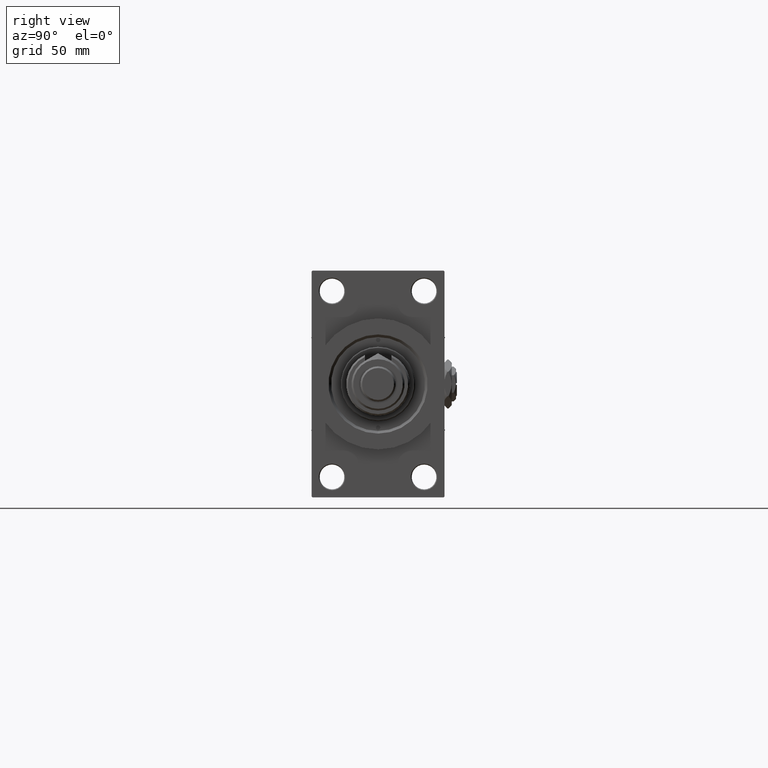
[diagram: clean part render]
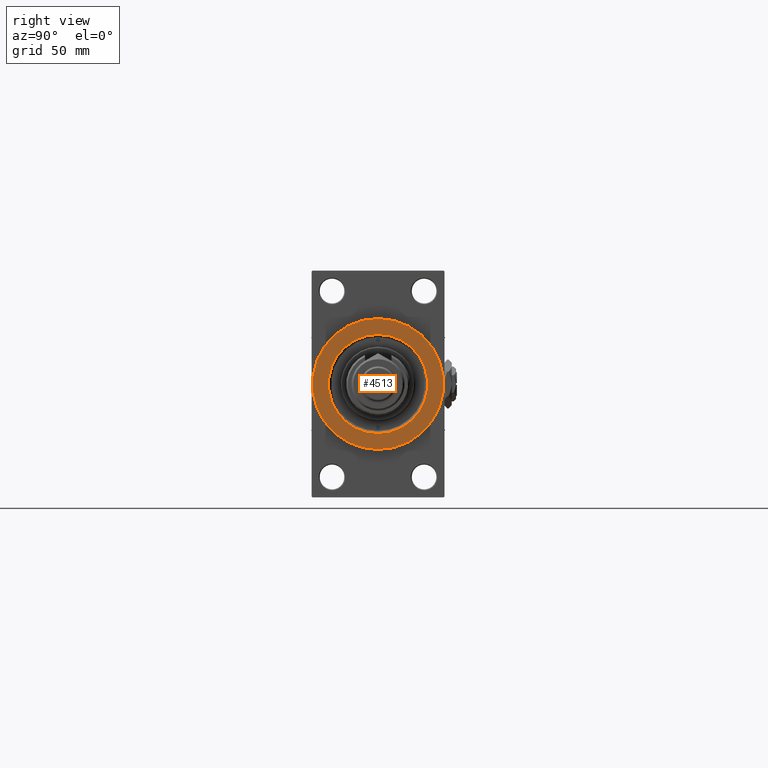
[diagram: same view with one face highlighted and labeled with its STEP entity id]
A machine part, right view. The second image highlights one B-rep face of the part: STEP entity #4513.
In plain terms, the highlighted planar face has unit normal (1, 0, 0).
Its self-contained STEP definition (entity closure, byte-faithful):
#361 = CARTESIAN_POINT ( 'NONE',  ( 259.0000000000000000, 0.000000000000000000, 0.000000000000000000 ) ) ;
#879 = DIRECTION ( 'NONE',  ( 0.000000000000000000, 0.000000000000000000, -1.000000000000000000 ) ) ;
#1268 = EDGE_CURVE ( 'NONE', #42878, #28211, #11918, .T. ) ;
#1585 = CARTESIAN_POINT ( 'NONE',  ( 259.0000000000000000, 0.000000000000000000, 0.000000000000000000 ) ) ;
#4037 = EDGE_LOOP ( 'NONE', ( #33934, #23608 ) ) ;
#4513 = ADVANCED_FACE ( 'NONE', ( #32911, #37131 ), #5111, .T. ) ;
#5071 = AXIS2_PLACEMENT_3D ( 'NONE', #28852, #41760, #21640 ) ;
#5111 = PLANE ( 'NONE',  #42859 ) ;
#9379 = AXIS2_PLACEMENT_3D ( 'NONE', #25473, #37137, #879 ) ;
#10594 = DIRECTION ( 'NONE',  ( 0.000000000000000000, 0.000000000000000000, -1.000000000000000000 ) ) ;
#11852 = EDGE_CURVE ( 'NONE', #21420, #23284, #49792, .T. ) ;
#11918 = CIRCLE ( 'NONE', #9379, 28.00000000000005329 ) ;
#16188 = ORIENTED_EDGE ( 'NONE', *, *, #41333, .T. ) ;
#17735 = DIRECTION ( 'NONE',  ( 0.000000000000000000, 0.000000000000000000, -1.000000000000000000 ) ) ;
#18522 = AXIS2_PLACEMENT_3D ( 'NONE', #1585, #33361, #17735 ) ;
#19335 = ORIENTED_EDGE ( 'NONE', *, *, #11852, .T. ) ;
#19434 = CARTESIAN_POINT ( 'NONE',  ( 259.0000000000000000, 4.531193156845206793E-15, -37.00000000000000000 ) ) ;
#19739 = CARTESIAN_POINT ( 'NONE',  ( 259.0000000000000000, 0.000000000000000000, 37.00000000000000000 ) ) ;
#21420 = VERTEX_POINT ( 'NONE', #19434 ) ;
#21640 = DIRECTION ( 'NONE',  ( 0.000000000000000000, 0.000000000000000000, -1.000000000000000000 ) ) ;
#23284 = VERTEX_POINT ( 'NONE', #19739 ) ;
#23608 = ORIENTED_EDGE ( 'NONE', *, *, #51776, .T. ) ;
#23945 = CIRCLE ( 'NONE', #27310, 28.00000000000005329 ) ;
#25473 = CARTESIAN_POINT ( 'NONE',  ( 259.0000000000000000, 0.000000000000000000, 0.000000000000000000 ) ) ;
#27310 = AXIS2_PLACEMENT_3D ( 'NONE', #31487, #39408, #10594 ) ;
#28211 = VERTEX_POINT ( 'NONE', #38254 ) ;
#28852 = CARTESIAN_POINT ( 'NONE',  ( 259.0000000000000000, 0.000000000000000000, 0.000000000000000000 ) ) ;
#31487 = CARTESIAN_POINT ( 'NONE',  ( 259.0000000000000000, 0.000000000000000000, 0.000000000000000000 ) ) ;
#31615 = CARTESIAN_POINT ( 'NONE',  ( 259.0000000000000000, 0.000000000000000000, -28.00000000000005329 ) ) ;
#32646 = DIRECTION ( 'NONE',  ( 1.000000000000000000, 0.000000000000000000, 0.000000000000000000 ) ) ;
#32911 = FACE_BOUND ( 'NONE', #4037, .T. ) ;
#33361 = DIRECTION ( 'NONE',  ( 1.000000000000000000, 0.000000000000000000, 0.000000000000000000 ) ) ;
#33431 = DIRECTION ( 'NONE',  ( 0.000000000000000000, 0.000000000000000000, -1.000000000000000000 ) ) ;
#33934 = ORIENTED_EDGE ( 'NONE', *, *, #1268, .T. ) ;
#37131 = FACE_OUTER_BOUND ( 'NONE', #51168, .T. ) ;
#37137 = DIRECTION ( 'NONE',  ( -1.000000000000000000, -0.000000000000000000, -0.000000000000000000 ) ) ;
#38254 = CARTESIAN_POINT ( 'NONE',  ( 259.0000000000000000, 3.429011037612595587E-15, 28.00000000000005329 ) ) ;
#39408 = DIRECTION ( 'NONE',  ( -1.000000000000000000, -0.000000000000000000, -0.000000000000000000 ) ) ;
#41333 = EDGE_CURVE ( 'NONE', #23284, #21420, #42257, .T. ) ;
#41760 = DIRECTION ( 'NONE',  ( 1.000000000000000000, 0.000000000000000000, 0.000000000000000000 ) ) ;
#42257 = CIRCLE ( 'NONE', #5071, 37.00000000000000000 ) ;
#42859 = AXIS2_PLACEMENT_3D ( 'NONE', #361, #32646, #33431 ) ;
#42878 = VERTEX_POINT ( 'NONE', #31615 ) ;
#49792 = CIRCLE ( 'NONE', #18522, 37.00000000000000000 ) ;
#51168 = EDGE_LOOP ( 'NONE', ( #16188, #19335 ) ) ;
#51776 = EDGE_CURVE ( 'NONE', #28211, #42878, #23945, .T. ) ;